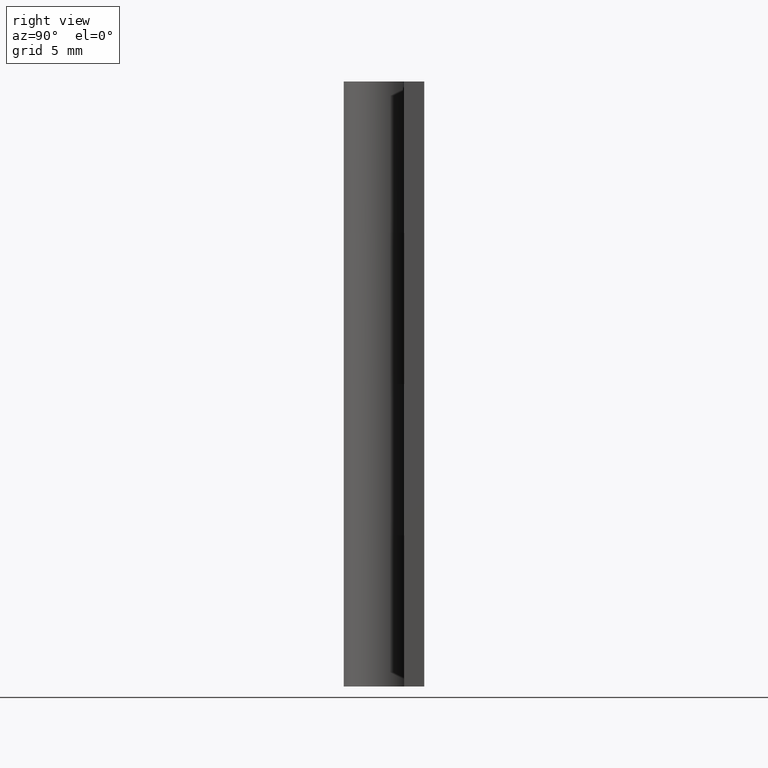
[diagram: clean part render]
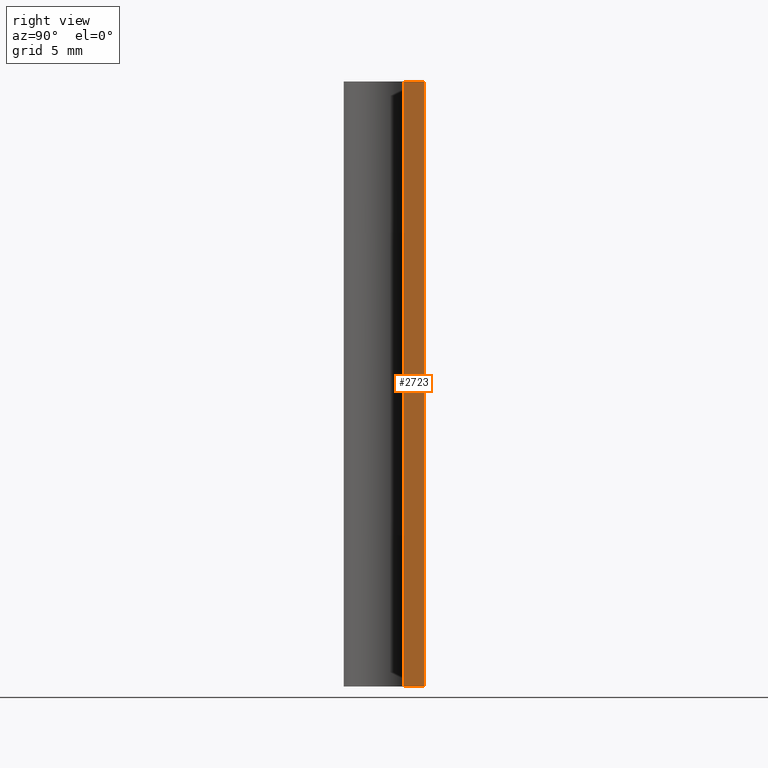
[diagram: same view with one face highlighted and labeled with its STEP entity id]
A machine part, right view. The second image highlights one B-rep face of the part: STEP entity #2723.
In plain terms, the highlighted face is a freeform B-spline surface patch.
Its self-contained STEP definition (entity closure, byte-faithful):
#2604=CARTESIAN_POINT('',(10.0,2.0,0.0));
#2605=VERTEX_POINT('',#2604);
#2611=CARTESIAN_POINT('',(10.0,1.0,0.0));
#2612=VERTEX_POINT('',#2611);
#2613=CARTESIAN_POINT('',(10.0,2.0,0.0));
#2614=CARTESIAN_POINT('',(10.0,1.0,0.0));
#2615=QUASI_UNIFORM_CURVE('',1,(#2613,#2614),.UNSPECIFIED.,.F.,.U.);
#2616=EDGE_CURVE('',#2605,#2612,#2615,.T.);
#2682=CARTESIAN_POINT('',(10.0,1.0,30.0));
#2683=VERTEX_POINT('',#2682);
#2689=CARTESIAN_POINT('',(10.0,2.0,30.0));
#2690=VERTEX_POINT('',#2689);
#2691=CARTESIAN_POINT('',(10.0,2.0,30.0));
#2692=CARTESIAN_POINT('',(10.0,1.0,30.0));
#2693=QUASI_UNIFORM_CURVE('',1,(#2691,#2692),.UNSPECIFIED.,.F.,.U.);
#2694=EDGE_CURVE('',#2690,#2683,#2693,.T.);
#2704=CARTESIAN_POINT('',(10.0,0.950050001938194,31.498499941854181));
#2705=CARTESIAN_POINT('',(10.0,0.950050001938194,-1.498500746516883));
#2706=CARTESIAN_POINT('',(10.0,2.049950024883896,31.498499941854181));
#2707=CARTESIAN_POINT('',(10.0,2.049950024883896,-1.498500746516883));
#2708=B_SPLINE_SURFACE_WITH_KNOTS('',1,1,((#2704,#2706),(#2705,#2707)),.UNSPECIFIED.,.F.,.F.,.U.,(2,2),(2,2),(0.0,32.997000688371060),(0.041708334948495,0.958291687403247),.UNSPECIFIED.);
#2709=ORIENTED_EDGE('',*,*,#2616,.F.);
#2710=CARTESIAN_POINT('',(10.0,2.0,30.0));
#2711=CARTESIAN_POINT('',(10.0,2.0,0.0));
#2712=QUASI_UNIFORM_CURVE('',1,(#2710,#2711),.UNSPECIFIED.,.F.,.U.);
#2713=EDGE_CURVE('',#2690,#2605,#2712,.T.);
#2714=ORIENTED_EDGE('',*,*,#2713,.F.);
#2715=ORIENTED_EDGE('',*,*,#2694,.T.);
#2716=CARTESIAN_POINT('',(10.0,1.0,30.0));
#2717=CARTESIAN_POINT('',(10.0,1.0,0.0));
#2718=QUASI_UNIFORM_CURVE('',1,(#2716,#2717),.UNSPECIFIED.,.F.,.U.);
#2719=EDGE_CURVE('',#2683,#2612,#2718,.T.);
#2720=ORIENTED_EDGE('',*,*,#2719,.T.);
#2721=EDGE_LOOP('',(#2709,#2714,#2715,#2720));
#2722=FACE_OUTER_BOUND('',#2721,.T.);
#2723=ADVANCED_FACE('',(#2722),#2708,.T.);